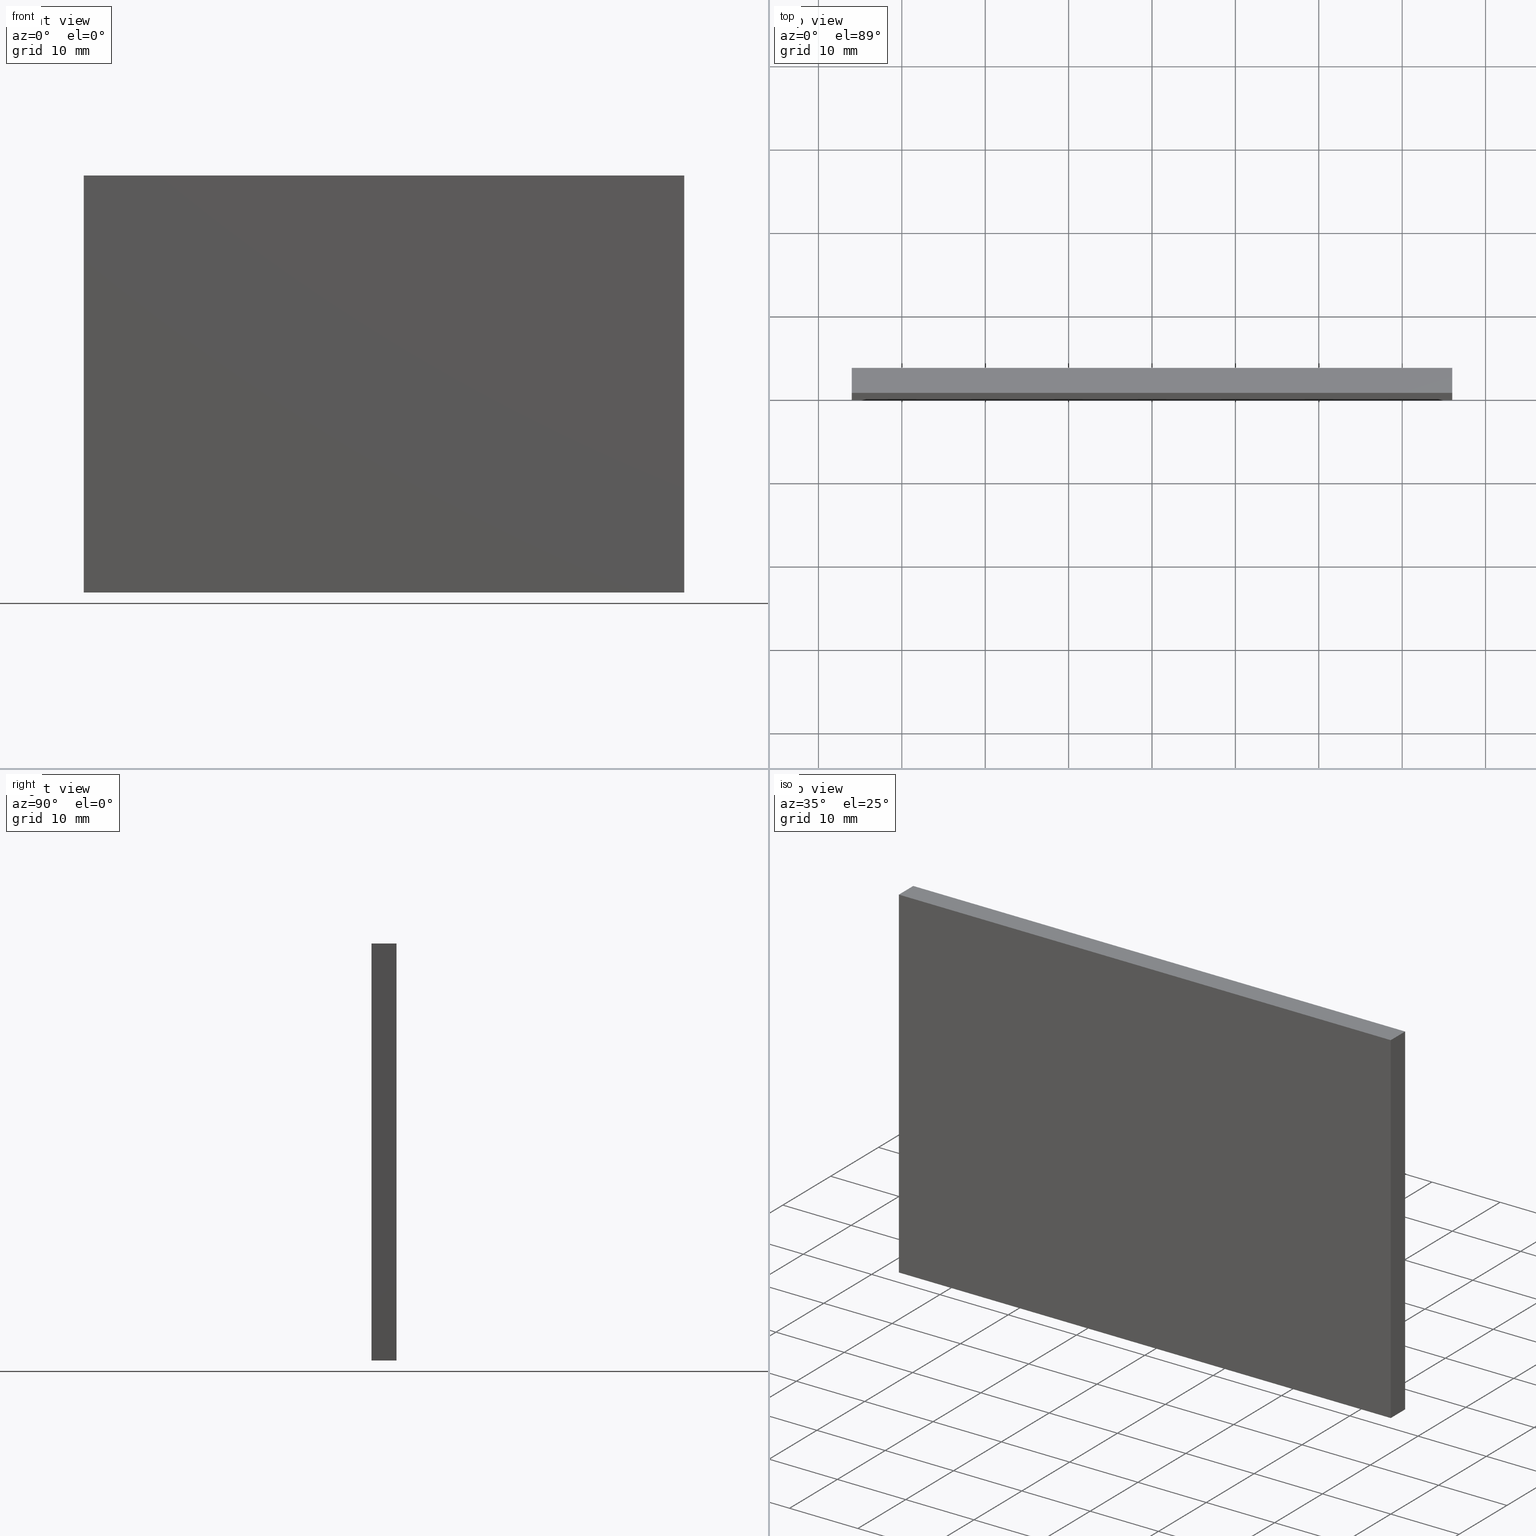
[diagram: canonical four-view strip — front | top / right | iso, engineering-drawing reading convention]
A machine part, canonical four-view strip (front | top / right | iso — engineering-drawing reading convention). The complete STEP part file that produces these views, byte-faithful:
ISO-10303-21;
HEADER;
FILE_DESCRIPTION (( 'STEP AP214' ),
    '1' );
FILE_NAME ('345508.STEP',
    '2019-08-12T08:32:00',
    ( 'user' ),
    ( '΢���й�' ),
    'SwSTEP 2.0',
    'SolidWorks 2016',
    '' );
FILE_SCHEMA (( 'AUTOMOTIVE_DESIGN' ));
ENDSEC;

DATA;
#1 = VERTEX_POINT ( 'NONE', #161 ) ;
#2 = LINE ( 'NONE', #131, #11 ) ;
#3 = CARTESIAN_POINT ( 'NONE',  ( -36.00000000000000700, 3.000000000000000000, -25.00000000000000000 ) ) ;
#4 = VECTOR ( 'NONE', #35, 1000.000000000000000 ) ;
#5 = EDGE_LOOP ( 'NONE', ( #29, #180, #188, #31 ) ) ;
#6 = DIRECTION ( 'NONE',  ( -1.387778780781445400E-016, 0.0000000000000000000, -1.000000000000000000 ) ) ;
#7 = DIRECTION ( 'NONE',  ( -1.000000000000000000, 0.0000000000000000000, 1.387778780781445400E-016 ) ) ;
#8 = ORIENTED_EDGE ( 'NONE', *, *, #25, .F. ) ;
#9 = LINE ( 'NONE', #167, #190 ) ;
#10 = AXIS2_PLACEMENT_3D ( 'NONE', #3, #162, #176 ) ;
#11 = VECTOR ( 'NONE', #138, 1000.000000000000000 ) ;
#12 = EDGE_CURVE ( 'NONE', #72, #187, #98, .T. ) ;
#13 = CARTESIAN_POINT ( 'NONE',  ( 35.99999999999999300, 3.000000000000000000, -25.00000000000000000 ) ) ;
#14 = CARTESIAN_POINT ( 'NONE',  ( -36.00000000000000700, 3.000000000000000000, -25.00000000000000000 ) ) ;
#15 = APPLICATION_CONTEXT ( 'automotive_design' ) ;
#16 = COLOUR_RGB ( '',1.000000000000000000, 1.000000000000000000, 1.000000000000000000 ) ;
#17 =( NAMED_UNIT ( * ) PLANE_ANGLE_UNIT ( ) SI_UNIT ( $, .RADIAN. ) );
#18 = PRESENTATION_STYLE_ASSIGNMENT (( #181 ) ) ;
#19 = ORIENTED_EDGE ( 'NONE', *, *, #97, .F. ) ;
#20 = LINE ( 'NONE', #151, #4 ) ;
#21 = VECTOR ( 'NONE', #149, 1000.000000000000000 ) ;
#22 = ORIENTED_EDGE ( 'NONE', *, *, #97, .T. ) ;
#23 =( LENGTH_UNIT ( ) NAMED_UNIT ( * ) SI_UNIT ( .MILLI., .METRE. ) );
#24 = ORIENTED_EDGE ( 'NONE', *, *, #142, .T. ) ;
#25 = EDGE_CURVE ( 'NONE', #1, #165, #2, .T. ) ;
#26 = FILL_AREA_STYLE ('',( #112 ) ) ;
#27 = VECTOR ( 'NONE', #152, 1000.000000000000000 ) ;
#28 = PLANE ( 'NONE',  #10 ) ;
#29 = ORIENTED_EDGE ( 'NONE', *, *, #12, .T. ) ;
#30 = DIRECTION ( 'NONE',  ( 0.0000000000000000000, 1.000000000000000000, 0.0000000000000000000 ) ) ;
#31 = ORIENTED_EDGE ( 'NONE', *, *, #186, .T. ) ;
#32 = ORIENTED_EDGE ( 'NONE', *, *, #150, .T. ) ;
#33 = FILL_AREA_STYLE_COLOUR ( '', #157 ) ;
#34 = CARTESIAN_POINT ( 'NONE',  ( -36.00000000000000000, 3.000000000000000000, 25.00000000000000000 ) ) ;
#35 = DIRECTION ( 'NONE',  ( -0.0000000000000000000, -1.000000000000000000, -0.0000000000000000000 ) ) ;
#36 = FACE_OUTER_BOUND ( 'NONE', #55, .T. ) ;
#37 = EDGE_CURVE ( 'NONE', #187, #1, #177, .T. ) ;
#38 = VECTOR ( 'NONE', #194, 1000.000000000000000 ) ;
#39 = VECTOR ( 'NONE', #95, 1000.000000000000000 ) ;
#40 = UNCERTAINTY_MEASURE_WITH_UNIT (LENGTH_MEASURE( 1.000000000000000100E-005 ), #64, 'distance_accuracy_value', 'NONE');
#41 = EDGE_LOOP ( 'NONE', ( #22, #24, #183, #32 ) ) ;
#42 = EDGE_CURVE ( 'NONE', #133, #1, #20, .T. ) ;
#43 = UNCERTAINTY_MEASURE_WITH_UNIT (LENGTH_MEASURE( 1.000000000000000100E-005 ), #101, 'distance_accuracy_value', 'NONE');
#44 = ADVANCED_FACE ( 'NONE', ( #57 ), #28, .F. ) ;
#45 = LINE ( 'NONE', #50, #139 ) ;
#46 = LINE ( 'NONE', #14, #38 ) ;
#47 = DIRECTION ( 'NONE',  ( 0.0000000000000000000, 0.0000000000000000000, 1.000000000000000000 ) ) ;
#48 = DIRECTION ( 'NONE',  ( 1.000000000000000000, 0.0000000000000000000, 0.0000000000000000000 ) ) ;
#49 =( NAMED_UNIT ( * ) SI_UNIT ( $, .STERADIAN. ) SOLID_ANGLE_UNIT ( ) );
#50 = CARTESIAN_POINT ( 'NONE',  ( -36.00000000000000700, 3.000000000000000000, -25.00000000000000000 ) ) ;
#51 = PRESENTATION_STYLE_ASSIGNMENT (( #154 ) ) ;
#52 = PRODUCT_DEFINITION_CONTEXT ( 'detailed design', #56, 'design' ) ;
#53 = VERTEX_POINT ( 'NONE', #145 ) ;
#54 = CARTESIAN_POINT ( 'NONE',  ( -36.00000000000000700, 3.000000000000000000, -25.00000000000000000 ) ) ;
#55 = EDGE_LOOP ( 'NONE', ( #123, #83, #19, #60 ) ) ;
#56 = APPLICATION_CONTEXT ( 'automotive_design' ) ;
#57 = FACE_OUTER_BOUND ( 'NONE', #96, .T. ) ;
#58 = PLANE ( 'NONE',  #182 ) ;
#59 = ADVANCED_FACE ( 'NONE', ( #36 ), #106, .F. ) ;
#60 = ORIENTED_EDGE ( 'NONE', *, *, #42, .T. ) ;
#61 = LINE ( 'NONE', #134, #39 ) ;
#62 = VECTOR ( 'NONE', #74, 1000.000000000000000 ) ;
#63 = STYLED_ITEM ( 'NONE', ( #18 ), #148 ) ;
#64 =( LENGTH_UNIT ( ) NAMED_UNIT ( * ) SI_UNIT ( .MILLI., .METRE. ) );
#65 = ORIENTED_EDGE ( 'NONE', *, *, #179, .T. ) ;
#66 =( NAMED_UNIT ( * ) SI_UNIT ( $, .STERADIAN. ) SOLID_ANGLE_UNIT ( ) );
#67 = DIRECTION ( 'NONE',  ( 1.000000000000000000, 0.0000000000000000000, 0.0000000000000000000 ) ) ;
#68 =( NAMED_UNIT ( * ) PLANE_ANGLE_UNIT ( ) SI_UNIT ( $, .RADIAN. ) );
#69 = PRESENTATION_LAYER_ASSIGNMENT (  '', '', ( #63 ) ) ;
#70 = CARTESIAN_POINT ( 'NONE',  ( -36.00000000000000700, 3.000000000000000000, -25.00000000000000000 ) ) ;
#71 = PRODUCT_DEFINITION_SHAPE ( 'NONE', 'NONE',  #141 ) ;
#72 = VERTEX_POINT ( 'NONE', #137 ) ;
#73 = AXIS2_PLACEMENT_3D ( 'NONE', #163, #7, #122 ) ;
#74 = DIRECTION ( 'NONE',  ( -0.0000000000000000000, -1.000000000000000000, -0.0000000000000000000 ) ) ;
#75 = CARTESIAN_POINT ( 'NONE',  ( -36.00000000000000000, 0.0000000000000000000, 25.00000000000000000 ) ) ;
#76 = VECTOR ( 'NONE', #199, 1000.000000000000000 ) ;
#77 = APPLICATION_PROTOCOL_DEFINITION ( 'draft international standard', 'automotive_design', 1998, #15 ) ;
#78 =( NAMED_UNIT ( * ) SI_UNIT ( $, .STERADIAN. ) SOLID_ANGLE_UNIT ( ) );
#79 = APPLICATION_PROTOCOL_DEFINITION ( 'draft international standard', 'automotive_design', 1998, #56 ) ;
#80 = CARTESIAN_POINT ( 'NONE',  ( -36.00000000000000700, 3.000000000000000000, -25.00000000000000000 ) ) ;
#81 = MECHANICAL_DESIGN_GEOMETRIC_PRESENTATION_REPRESENTATION (  '', ( #63 ), #90 ) ;
#82 = STYLED_ITEM ( 'NONE', ( #51 ), #127 ) ;
#83 = ORIENTED_EDGE ( 'NONE', *, *, #192, .F. ) ;
#84 = DIRECTION ( 'NONE',  ( 0.0000000000000000000, -0.0000000000000000000, 1.000000000000000000 ) ) ;
#85 = SURFACE_SIDE_STYLE ('',( #110 ) ) ;
#86 = LINE ( 'NONE', #70, #62 ) ;
#87 = VERTEX_POINT ( 'NONE', #114 ) ;
#88 = FACE_OUTER_BOUND ( 'NONE', #5, .T. ) ;
#89 = CARTESIAN_POINT ( 'NONE',  ( 36.00000000000000000, 3.000000000000000000, 25.00000000000000000 ) ) ;
#90 =( GEOMETRIC_REPRESENTATION_CONTEXT ( 3 ) GLOBAL_UNCERTAINTY_ASSIGNED_CONTEXT ( ( #200 ) ) GLOBAL_UNIT_ASSIGNED_CONTEXT ( ( #23, #158, #78 ) ) REPRESENTATION_CONTEXT ( 'NONE', 'WORKASPACE' ) );
#91 = CARTESIAN_POINT ( 'NONE',  ( 0.0000000000000000000, 0.0000000000000000000, 0.0000000000000000000 ) ) ;
#92 = AXIS2_PLACEMENT_3D ( 'NONE', #34, #196, #100 ) ;
#93 = EDGE_LOOP ( 'NONE', ( #169, #135, #129, #159 ) ) ;
#94 = DIRECTION ( 'NONE',  ( 1.000000000000000000, 0.0000000000000000000, -1.387778780781445400E-016 ) ) ;
#95 = DIRECTION ( 'NONE',  ( -0.0000000000000000000, -1.000000000000000000, -0.0000000000000000000 ) ) ;
#96 = EDGE_LOOP ( 'NONE', ( #65, #113, #108, #189 ) ) ;
#97 = EDGE_CURVE ( 'NONE', #133, #87, #198, .T. ) ;
#98 = LINE ( 'NONE', #146, #21 ) ;
#99 = ORIENTED_EDGE ( 'NONE', *, *, #37, .F. ) ;
#100 = DIRECTION ( 'NONE',  ( -1.000000000000000000, 0.0000000000000000000, -0.0000000000000000000 ) ) ;
#101 =( LENGTH_UNIT ( ) NAMED_UNIT ( * ) SI_UNIT ( .MILLI., .METRE. ) );
#102 = FILL_AREA_STYLE ('',( #33 ) ) ;
#103 = LINE ( 'NONE', #184, #76 ) ;
#104 = FACE_OUTER_BOUND ( 'NONE', #41, .T. ) ;
#105 = CARTESIAN_POINT ( 'NONE',  ( 0.0000000000000000000, 0.0000000000000000000, 0.0000000000000000000 ) ) ;
#106 = PLANE ( 'NONE',  #73 ) ;
#107 = ORIENTED_EDGE ( 'NONE', *, *, #12, .F. ) ;
#108 = ORIENTED_EDGE ( 'NONE', *, *, #142, .F. ) ;
#109 = VECTOR ( 'NONE', #119, 1000.000000000000000 ) ;
#110 = SURFACE_STYLE_FILL_AREA ( #102 ) ;
#111 = PRESENTATION_LAYER_ASSIGNMENT (  '', '', ( #82 ) ) ;
#112 = FILL_AREA_STYLE_COLOUR ( '', #16 ) ;
#113 = ORIENTED_EDGE ( 'NONE', *, *, #186, .F. ) ;
#114 = CARTESIAN_POINT ( 'NONE',  ( 35.99999999999999300, 3.000000000000000000, -25.00000000000000000 ) ) ;
#115 = SHAPE_DEFINITION_REPRESENTATION ( #71, #148 ) ;
#116 = FACE_OUTER_BOUND ( 'NONE', #93, .T. ) ;
#117 = FACE_OUTER_BOUND ( 'NONE', #156, .T. ) ;
#118 = MECHANICAL_DESIGN_GEOMETRIC_PRESENTATION_REPRESENTATION (  '', ( #82 ), #132 ) ;
#119 = DIRECTION ( 'NONE',  ( -0.0000000000000000000, -1.000000000000000000, -0.0000000000000000000 ) ) ;
#120 = SURFACE_STYLE_FILL_AREA ( #26 ) ;
#121 = PLANE ( 'NONE',  #92 ) ;
#122 = DIRECTION ( 'NONE',  ( 1.387778780781445400E-016, 0.0000000000000000000, 1.000000000000000000 ) ) ;
#123 = ORIENTED_EDGE ( 'NONE', *, *, #25, .T. ) ;
#124 = ADVANCED_FACE ( 'NONE', ( #116 ), #121, .F. ) ;
#125 = EDGE_CURVE ( 'NONE', #175, #53, #46, .T. ) ;
#126 = ORIENTED_EDGE ( 'NONE', *, *, #179, .F. ) ;
#127 = MANIFOLD_SOLID_BREP ( '͹̨-����1', #144 ) ;
#128 = DIRECTION ( 'NONE',  ( -1.387778780781445700E-016, -0.0000000000000000000, -1.000000000000000000 ) ) ;
#129 = ORIENTED_EDGE ( 'NONE', *, *, #150, .F. ) ;
#130 = AXIS2_PLACEMENT_3D ( 'NONE', #105, #47, #48 ) ;
#131 = CARTESIAN_POINT ( 'NONE',  ( 35.99999999999999300, 0.0000000000000000000, -25.00000000000000000 ) ) ;
#132 =( GEOMETRIC_REPRESENTATION_CONTEXT ( 3 ) GLOBAL_UNCERTAINTY_ASSIGNED_CONTEXT ( ( #43 ) ) GLOBAL_UNIT_ASSIGNED_CONTEXT ( ( #101, #17, #49 ) ) REPRESENTATION_CONTEXT ( 'NONE', 'WORKASPACE' ) );
#133 = VERTEX_POINT ( 'NONE', #89 ) ;
#134 = CARTESIAN_POINT ( 'NONE',  ( -36.00000000000000000, 3.000000000000000000, 25.00000000000000000 ) ) ;
#135 = ORIENTED_EDGE ( 'NONE', *, *, #42, .F. ) ;
#136 = PLANE ( 'NONE',  #166 ) ;
#137 = CARTESIAN_POINT ( 'NONE',  ( -36.00000000000000700, 0.0000000000000000000, -25.00000000000000000 ) ) ;
#138 = DIRECTION ( 'NONE',  ( -1.387778780781445700E-016, -0.0000000000000000000, -1.000000000000000000 ) ) ;
#139 = VECTOR ( 'NONE', #171, 1000.000000000000000 ) ;
#140 = LINE ( 'NONE', #13, #109 ) ;
#141 = PRODUCT_DEFINITION ( 'δ֪', '', #155, #52 ) ;
#142 = EDGE_CURVE ( 'NONE', #87, #175, #45, .T. ) ;
#143 = ADVANCED_FACE ( 'NONE', ( #88 ), #136, .F. ) ;
#144 = CLOSED_SHELL ( 'NONE', ( #59, #44, #143, #124, #185, #201 ) ) ;
#145 = CARTESIAN_POINT ( 'NONE',  ( -36.00000000000000000, 3.000000000000000000, 25.00000000000000000 ) ) ;
#146 = CARTESIAN_POINT ( 'NONE',  ( -36.00000000000000700, 0.0000000000000000000, -25.00000000000000000 ) ) ;
#147 = VECTOR ( 'NONE', #128, 1000.000000000000000 ) ;
#148 = ADVANCED_BREP_SHAPE_REPRESENTATION ( '345508', ( #127, #130 ), #191 ) ;
#149 = DIRECTION ( 'NONE',  ( 1.387778780781445700E-016, 0.0000000000000000000, 1.000000000000000000 ) ) ;
#150 = EDGE_CURVE ( 'NONE', #53, #133, #9, .T. ) ;
#151 = CARTESIAN_POINT ( 'NONE',  ( 36.00000000000000000, 3.000000000000000000, 25.00000000000000000 ) ) ;
#152 = DIRECTION ( 'NONE',  ( 1.000000000000000000, 0.0000000000000000000, 0.0000000000000000000 ) ) ;
#153 = CARTESIAN_POINT ( 'NONE',  ( 35.99999999999999300, 0.0000000000000000000, -25.00000000000000000 ) ) ;
#154 = SURFACE_STYLE_USAGE ( .BOTH. , #193 ) ;
#155 = PRODUCT_DEFINITION_FORMATION_WITH_SPECIFIED_SOURCE ( '�κ�', '', #168, .NOT_KNOWN. ) ;
#156 = EDGE_LOOP ( 'NONE', ( #8, #99, #107, #126 ) ) ;
#157 = COLOUR_RGB ( '',1.000000000000000000, 1.000000000000000000, 1.000000000000000000 ) ;
#158 =( NAMED_UNIT ( * ) PLANE_ANGLE_UNIT ( ) SI_UNIT ( $, .RADIAN. ) );
#159 = ORIENTED_EDGE ( 'NONE', *, *, #170, .T. ) ;
#160 = CARTESIAN_POINT ( 'NONE',  ( -36.00000000000000000, 0.0000000000000000000, 25.00000000000000000 ) ) ;
#161 = CARTESIAN_POINT ( 'NONE',  ( 36.00000000000000000, 0.0000000000000000000, 25.00000000000000000 ) ) ;
#162 = DIRECTION ( 'NONE',  ( 0.0000000000000000000, 0.0000000000000000000, 1.000000000000000000 ) ) ;
#163 = CARTESIAN_POINT ( 'NONE',  ( 35.99999999999999300, 3.000000000000000000, -25.00000000000000000 ) ) ;
#164 = PRODUCT_RELATED_PRODUCT_CATEGORY ( 'part', '', ( #168 ) ) ;
#165 = VERTEX_POINT ( 'NONE', #153 ) ;
#166 = AXIS2_PLACEMENT_3D ( 'NONE', #54, #94, #6 ) ;
#167 = CARTESIAN_POINT ( 'NONE',  ( -36.00000000000000000, 3.000000000000000000, 25.00000000000000000 ) ) ;
#168 = PRODUCT ( '345508', '345508', '', ( #173 ) ) ;
#169 = ORIENTED_EDGE ( 'NONE', *, *, #37, .T. ) ;
#170 = EDGE_CURVE ( 'NONE', #53, #187, #61, .T. ) ;
#171 = DIRECTION ( 'NONE',  ( -1.000000000000000000, -0.0000000000000000000, -0.0000000000000000000 ) ) ;
#172 = DIRECTION ( 'NONE',  ( 0.0000000000000000000, -0.0000000000000000000, 1.000000000000000000 ) ) ;
#173 = PRODUCT_CONTEXT ( 'NONE', #15, 'mechanical' ) ;
#174 = CARTESIAN_POINT ( 'NONE',  ( 35.99999999999999300, 3.000000000000000000, -25.00000000000000000 ) ) ;
#175 = VERTEX_POINT ( 'NONE', #80 ) ;
#176 = DIRECTION ( 'NONE',  ( 1.000000000000000000, 0.0000000000000000000, -0.0000000000000000000 ) ) ;
#177 = LINE ( 'NONE', #160, #27 ) ;
#178 = DIRECTION ( 'NONE',  ( 0.0000000000000000000, 1.000000000000000000, 0.0000000000000000000 ) ) ;
#179 = EDGE_CURVE ( 'NONE', #165, #72, #103, .T. ) ;
#180 = ORIENTED_EDGE ( 'NONE', *, *, #170, .F. ) ;
#181 = SURFACE_STYLE_USAGE ( .BOTH. , #85 ) ;
#182 = AXIS2_PLACEMENT_3D ( 'NONE', #195, #30, #172 ) ;
#183 = ORIENTED_EDGE ( 'NONE', *, *, #125, .T. ) ;
#184 = CARTESIAN_POINT ( 'NONE',  ( -36.00000000000000700, 0.0000000000000000000, -25.00000000000000000 ) ) ;
#185 = ADVANCED_FACE ( 'NONE', ( #104 ), #58, .T. ) ;
#186 = EDGE_CURVE ( 'NONE', #175, #72, #86, .T. ) ;
#187 = VERTEX_POINT ( 'NONE', #75 ) ;
#188 = ORIENTED_EDGE ( 'NONE', *, *, #125, .F. ) ;
#189 = ORIENTED_EDGE ( 'NONE', *, *, #192, .T. ) ;
#190 = VECTOR ( 'NONE', #67, 1000.000000000000000 ) ;
#191 =( GEOMETRIC_REPRESENTATION_CONTEXT ( 3 ) GLOBAL_UNCERTAINTY_ASSIGNED_CONTEXT ( ( #40 ) ) GLOBAL_UNIT_ASSIGNED_CONTEXT ( ( #64, #68, #66 ) ) REPRESENTATION_CONTEXT ( 'NONE', 'WORKASPACE' ) );
#192 = EDGE_CURVE ( 'NONE', #87, #165, #140, .T. ) ;
#193 = SURFACE_SIDE_STYLE ('',( #120 ) ) ;
#194 = DIRECTION ( 'NONE',  ( 1.387778780781445700E-016, 0.0000000000000000000, 1.000000000000000000 ) ) ;
#195 = CARTESIAN_POINT ( 'NONE',  ( 0.0000000000000000000, 3.000000000000000000, 0.0000000000000000000 ) ) ;
#196 = DIRECTION ( 'NONE',  ( 0.0000000000000000000, 0.0000000000000000000, -1.000000000000000000 ) ) ;
#197 = PLANE ( 'NONE',  #202 ) ;
#198 = LINE ( 'NONE', #174, #147 ) ;
#199 = DIRECTION ( 'NONE',  ( -1.000000000000000000, -0.0000000000000000000, -0.0000000000000000000 ) ) ;
#200 = UNCERTAINTY_MEASURE_WITH_UNIT (LENGTH_MEASURE( 1.000000000000000100E-005 ), #23, 'distance_accuracy_value', 'NONE');
#201 = ADVANCED_FACE ( 'NONE', ( #117 ), #197, .F. ) ;
#202 = AXIS2_PLACEMENT_3D ( 'NONE', #91, #178, #84 ) ;
ENDSEC;
END-ISO-10303-21;
